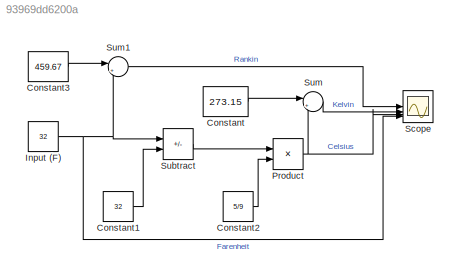
MODEL slx_93969dd6200a
KIND model
CONFIG AbsTol = auto
CONFIG EnableMultiTasking = off
CONFIG FixedStep = auto
CONFIG MaxStep = auto
CONFIG MinStep = auto
CONFIG RelTol = 1e-3
CONFIG SampleTimeConstraint = Unconstrained
CONFIG SolverName = VariableStepAuto
CONFIG StartTime = 0.0
CONFIG StopTime = 10.0
BLOCK [Constant]  Input (F)
  Value = 32
BLOCK [Constant] Constant
  Value = 273.15
BLOCK [Constant] Constant1
  Value = 32
BLOCK [Constant] Constant2
  Value = 5/9
BLOCK [Constant] Constant3
  Value = 459.67
BLOCK [Product] Product
BLOCK [Scope] Scope
  ActiveDisplayYMaximum = 553.12875
  ActiveDisplayYMinimum = -61.458749999999988
  Floating = off
  GraphicalSettings = {"Style":{"BackgroundColor":[0.12941176470588237,0.12941176470588237,0.12941176470588237],"AxesColor":[0.07058823529411765,0.07058823529411765,0.07058823529411765],"LabelsColor":[0.8509803921568627,0.8509803921568627,0.8509803921568627],"PreserveColors":false,"Visible":[true,true,true,true],"LineStyle":["-","-","-","-"],"LineWidth":[1.5,1.5,1.5,1.5],"BarWidth":[0.9,0.9,0.9,0.9],"LineColor":["auto"...<+2300ch>
  MultipleDisplayCache = [{"MaxYLimMag":553.12875,"MaxYLimReal":553.12875,"MinYLimMag":0,"MinYLimReal":-61.458749999999988,"PlotAsMagnitudePhase":false,"ShowGrid":true,"ShowLegend":true,"Title":"%<SignalLabel>","YLabel":"Temp"}]
  NumInputPorts = 4
  ScopeFrameLocation = window
  ShowLegend = on
  WasSavedAsWebScope = on
  WindowPosition = [935.000000,177.000000,560.000000,506.000000,]
  YLabel = Temp
BLOCK [Sum] Subtract
  IconShape = rectangular
  Inputs = +-
BLOCK [Sum] Sum
  Inputs = |++
BLOCK [Sum] Sum1
  Inputs = |++
NET  Input (F):1 -> Scope:4, Subtract:1, Sum1:2
LINE Constant1:1 -> Subtract:2
LINE Constant2:1 -> Product:2
LINE Constant3:1 -> Sum1:1
LINE Constant:1 -> Sum:1
NET Product:1 -> Scope:3, Sum:2
LINE Subtract:1 -> Product:1
LINE Sum1:1 -> Scope:1
LINE Sum:1 -> Scope:2
note: NET lines group one-source signal fan-out (src -> all destinations, sorted); 1:1 wires keep LINE
